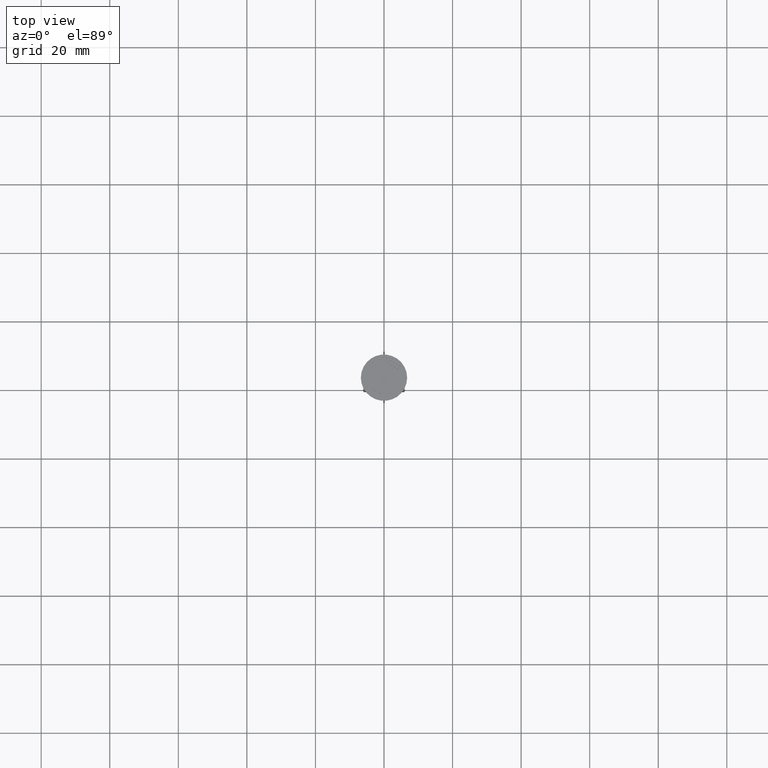
[diagram: clean part render]
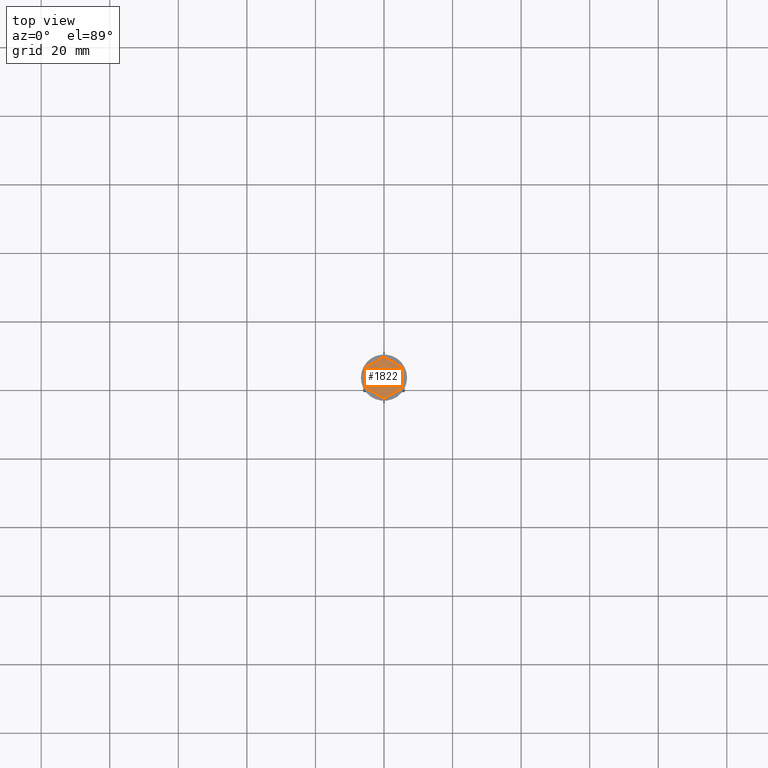
[diagram: same view with one face highlighted and labeled with its STEP entity id]
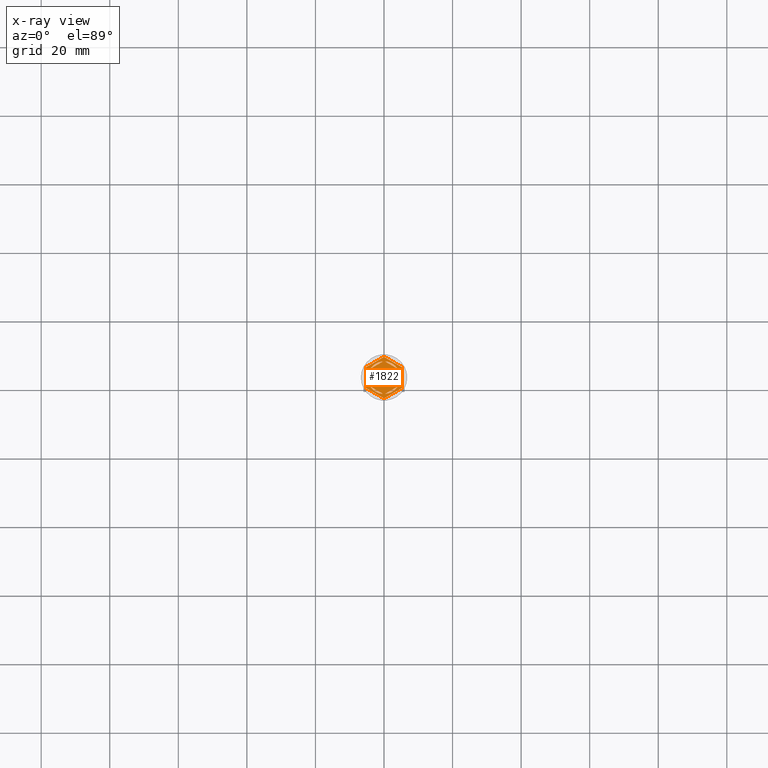
[diagram: x-ray of the same camera — body ghosted, the highlighted face saturated]
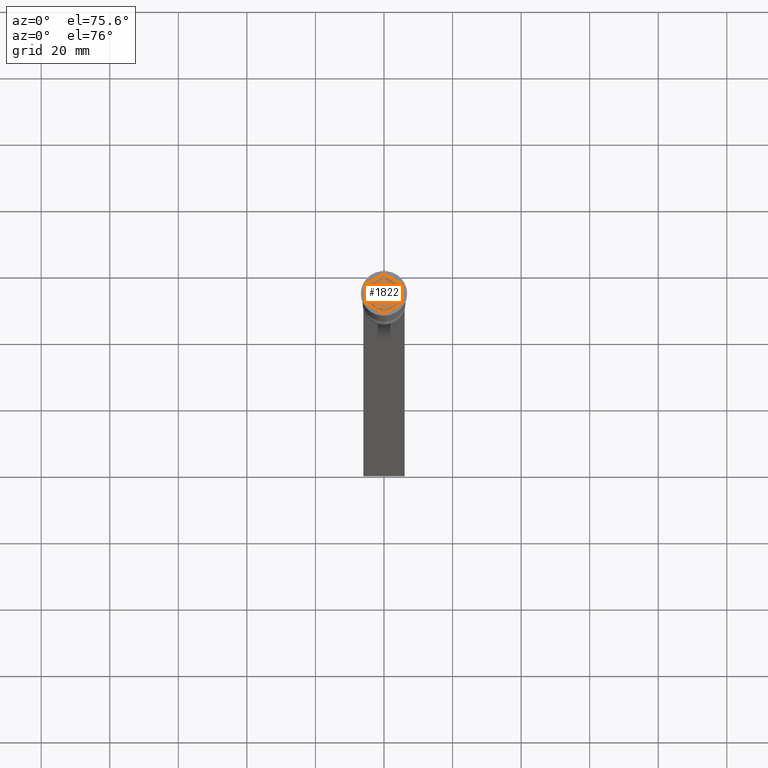
[diagram: same view with one face highlighted and labeled with its STEP entity id]
A machine part, top view. The second image highlights one B-rep face of the part: STEP entity #1822.
The next image is the same camera in x-ray: the body ghosted, the highlighted face saturated — about 0% of this face is hidden behind the body in this view.
A second angle (auxiliary view) of the same face is appended — the face is thin or edge-on in the first view.
In plain terms, the highlighted planar face has unit normal (0, 0, 1).
Its self-contained STEP definition (entity closure, byte-faithful):
#10 = ORIENTED_EDGE ( 'NONE', *, *, #2253, .F. ) ;
#44 = CARTESIAN_POINT ( 'NONE',  ( 0.2878826929126145906, 4.741268137863685617, -1.000000000000000888 ) ) ;
#48 = LINE ( 'NONE', #2234, #1644 ) ;
#51 = AXIS2_PLACEMENT_3D ( 'NONE', #2301, #1766, #1680 ) ;
#53 = VECTOR ( 'NONE', #285, 1000.000000000000000 ) ;
#59 = CARTESIAN_POINT ( 'NONE',  ( -4.250000000000000000, 2.453738644055909468, -1.000000000000000888 ) ) ;
#69 = EDGE_CURVE ( 'NONE', #2292, #2119, #1485, .T. ) ;
#103 = DIRECTION ( 'NONE',  ( 0.000000000000000000, 1.000000000000000000, 0.000000000000000000 ) ) ;
#106 = VERTEX_POINT ( 'NONE', #44 ) ;
#117 = DIRECTION ( 'NONE',  ( 0.000000000000000000, 0.000000000000000000, 1.000000000000000000 ) ) ;
#123 = EDGE_LOOP ( 'NONE', ( #1969, #1373 ) ) ;
#124 = VERTEX_POINT ( 'NONE', #1328 ) ;
#158 = VECTOR ( 'NONE', #103, 1000.000000000000000 ) ;
#163 = VERTEX_POINT ( 'NONE', #965 ) ;
#165 = ORIENTED_EDGE ( 'NONE', *, *, #69, .T. ) ;
#180 = CARTESIAN_POINT ( 'NONE',  ( 4.249999999999999112, -2.121320343559645938, -1.000000000000000888 ) ) ;
#183 = EDGE_CURVE ( 'NONE', #498, #2292, #1371, .T. ) ;
#184 = LINE ( 'NONE', #1286, #1875 ) ;
#222 = CIRCLE ( 'NONE', #1537, 4.750000000000000888 ) ;
#231 = VECTOR ( 'NONE', #2023, 1000.000000000000227 ) ;
#256 = DIRECTION ( 'NONE',  ( 1.000000000000000000, 0.000000000000000000, 0.000000000000000000 ) ) ;
#277 = CARTESIAN_POINT ( 'NONE',  ( -5.250000000000000888, 3.031088913245535643, -1.000000000000000000 ) ) ;
#285 = DIRECTION ( 'NONE',  ( -0.8660254037844387076, -0.4999999999999999445, 0.000000000000000000 ) ) ;
#293 = VERTEX_POINT ( 'NONE', #1902 ) ;
#301 = VECTOR ( 'NONE', #2045, 1000.000000000000114 ) ;
#307 = CARTESIAN_POINT ( 'NONE',  ( 5.250000000000000888, -3.031088913245536087, -1.000000000000000000 ) ) ;
#314 = ORIENTED_EDGE ( 'NONE', *, *, #1707, .F. ) ;
#334 = FACE_BOUND ( 'NONE', #2255, .T. ) ;
#345 = PLANE ( 'NONE',  #437 ) ;
#365 = VERTEX_POINT ( 'NONE', #2147 ) ;
#375 = VERTEX_POINT ( 'NONE', #1628 ) ;
#389 = VERTEX_POINT ( 'NONE', #935 ) ;
#408 = CARTESIAN_POINT ( 'NONE',  ( 0.000000000000000000, 6.062177826491072175, -1.000000000000000000 ) ) ;
#424 = DIRECTION ( 'NONE',  ( -1.767428939690775055E-16, -1.000000000000000000, 0.000000000000000000 ) ) ;
#431 = CARTESIAN_POINT ( 'NONE',  ( -4.250000000000000000, 2.121320343559643717, -1.000000000000000888 ) ) ;
#437 = AXIS2_PLACEMENT_3D ( 'NONE', #841, #1553, #494 ) ;
#451 = EDGE_CURVE ( 'NONE', #124, #163, #184, .T. ) ;
#467 = FACE_BOUND ( 'NONE', #1935, .T. ) ;
#471 = AXIS2_PLACEMENT_3D ( 'NONE', #1001, #1708, #2032 ) ;
#492 = DIRECTION ( 'NONE',  ( 1.000000000000000000, 0.000000000000000000, 0.000000000000000000 ) ) ;
#494 = DIRECTION ( 'NONE',  ( 1.000000000000000000, 0.000000000000000000, -0.000000000000000000 ) ) ;
#498 = VERTEX_POINT ( 'NONE', #769 ) ;
#511 = ORIENTED_EDGE ( 'NONE', *, *, #2085, .F. ) ;
#516 = EDGE_CURVE ( 'NONE', #1576, #498, #1318, .T. ) ;
#539 = EDGE_CURVE ( 'NONE', #2310, #773, #1621, .T. ) ;
#558 = AXIS2_PLACEMENT_3D ( 'NONE', #909, #920, #2178 ) ;
#589 = DIRECTION ( 'NONE',  ( 0.000000000000000000, 0.000000000000000000, 1.000000000000000000 ) ) ;
#592 = DIRECTION ( 'NONE',  ( 1.000000000000000000, 0.000000000000000000, 0.000000000000000000 ) ) ;
#600 = CARTESIAN_POINT ( 'NONE',  ( 0.000000000000000000, 0.000000000000000000, -1.000000000000000000 ) ) ;
#630 = CARTESIAN_POINT ( 'NONE',  ( 3.962117307087384521, 2.619947794304043232, -1.000000000000000888 ) ) ;
#632 = CARTESIAN_POINT ( 'NONE',  ( 0.000000000000000000, 6.062177826491072175, -1.000000000000000000 ) ) ;
#643 = VECTOR ( 'NONE', #1048, 1000.000000000000227 ) ;
#649 = DIRECTION ( 'NONE',  ( 0.8660254037844387076, -0.4999999999999998335, 0.000000000000000000 ) ) ;
#668 = ORIENTED_EDGE ( 'NONE', *, *, #451, .F. ) ;
#669 = VECTOR ( 'NONE', #424, 1000.000000000000000 ) ;
#688 = EDGE_CURVE ( 'NONE', #1718, #365, #883, .T. ) ;
#691 = ORIENTED_EDGE ( 'NONE', *, *, #1647, .F. ) ;
#705 = VECTOR ( 'NONE', #1273, 1000.000000000000000 ) ;
#709 = EDGE_CURVE ( 'NONE', #2119, #1547, #1899, .T. ) ;
#769 = CARTESIAN_POINT ( 'NONE',  ( 5.250000000000000888, -3.031088913245536087, -1.000000000000000000 ) ) ;
#773 = VERTEX_POINT ( 'NONE', #867 ) ;
#774 = LINE ( 'NONE', #1861, #669 ) ;
#777 = CARTESIAN_POINT ( 'NONE',  ( 0.000000000000000000, 0.000000000000000000, -1.000000000000000000 ) ) ;
#779 = ORIENTED_EDGE ( 'NONE', *, *, #183, .T. ) ;
#827 = VERTEX_POINT ( 'NONE', #180 ) ;
#828 = CARTESIAN_POINT ( 'NONE',  ( 0.000000000000000000, 0.000000000000000000, -1.000000000000000000 ) ) ;
#831 = VECTOR ( 'NONE', #649, 1000.000000000000000 ) ;
#841 = CARTESIAN_POINT ( 'NONE',  ( 0.000000000000000000, 0.000000000000000000, -1.000000000000000000 ) ) ;
#853 = FACE_BOUND ( 'NONE', #927, .T. ) ;
#867 = CARTESIAN_POINT ( 'NONE',  ( 3.962117307087384521, -2.619947794304042787, -1.000000000000000888 ) ) ;
#879 = EDGE_LOOP ( 'NONE', ( #165, #1427, #1200, #1152, #1047, #779 ) ) ;
#883 = CIRCLE ( 'NONE', #1777, 4.750000000000000888 ) ;
#898 = CARTESIAN_POINT ( 'NONE',  ( 4.250000000000000000, 2.453738644055910800, -1.000000000000000888 ) ) ;
#909 = CARTESIAN_POINT ( 'NONE',  ( 0.000000000000000000, 0.000000000000000000, -1.000000000000000000 ) ) ;
#910 = DIRECTION ( 'NONE',  ( 0.8660254037844385966, 0.5000000000000001110, -0.000000000000000000 ) ) ;
#920 = DIRECTION ( 'NONE',  ( 0.000000000000000000, 0.000000000000000000, 1.000000000000000000 ) ) ;
#927 = EDGE_LOOP ( 'NONE', ( #1408, #10 ) ) ;
#934 = EDGE_CURVE ( 'NONE', #293, #827, #774, .T. ) ;
#935 = CARTESIAN_POINT ( 'NONE',  ( -0.2878826929126160894, -4.741268137863686505, -1.000000000000000888 ) ) ;
#943 = CARTESIAN_POINT ( 'NONE',  ( -4.250000000000000000, -2.453738644055909912, -1.000000000000000888 ) ) ;
#948 = VERTEX_POINT ( 'NONE', #2205 ) ;
#965 = CARTESIAN_POINT ( 'NONE',  ( -0.2878826929126160894, 4.741268137863686505, -1.000000000000000888 ) ) ;
#969 = VECTOR ( 'NONE', #1609, 1000.000000000000000 ) ;
#1001 = CARTESIAN_POINT ( 'NONE',  ( 0.000000000000000000, 0.000000000000000000, -1.000000000000000000 ) ) ;
#1047 = ORIENTED_EDGE ( 'NONE', *, *, #516, .T. ) ;
#1048 = DIRECTION ( 'NONE',  ( -0.8660254037844385966, -0.5000000000000000000, 0.000000000000000000 ) ) ;
#1120 = CARTESIAN_POINT ( 'NONE',  ( -5.250000000000000888, -3.031088913245536087, -1.000000000000000000 ) ) ;
#1123 = ORIENTED_EDGE ( 'NONE', *, *, #2180, .F. ) ;
#1128 = CIRCLE ( 'NONE', #558, 4.750000000000000888 ) ;
#1139 = DIRECTION ( 'NONE',  ( 0.000000000000000000, -1.000000000000000000, 0.000000000000000000 ) ) ;
#1151 = EDGE_CURVE ( 'NONE', #1942, #1576, #1926, .T. ) ;
#1152 = ORIENTED_EDGE ( 'NONE', *, *, #1151, .T. ) ;
#1168 = ORIENTED_EDGE ( 'NONE', *, *, #1832, .F. ) ;
#1170 = LINE ( 'NONE', #59, #2093 ) ;
#1183 = CARTESIAN_POINT ( 'NONE',  ( 5.250000000000000888, 3.031088913245536087, -1.000000000000000000 ) ) ;
#1184 = VERTEX_POINT ( 'NONE', #630 ) ;
#1200 = ORIENTED_EDGE ( 'NONE', *, *, #2112, .T. ) ;
#1209 = FACE_BOUND ( 'NONE', #123, .T. ) ;
#1240 = CIRCLE ( 'NONE', #471, 4.750000000000000888 ) ;
#1273 = DIRECTION ( 'NONE',  ( -0.8660254037844385966, 0.5000000000000001110, 0.000000000000000000 ) ) ;
#1286 = CARTESIAN_POINT ( 'NONE',  ( 4.336808689942017736E-16, 4.907477288111819824, -1.000000000000000888 ) ) ;
#1318 = LINE ( 'NONE', #2028, #301 ) ;
#1328 = CARTESIAN_POINT ( 'NONE',  ( -3.962117307087385409, 2.619947794304041899, -1.000000000000000888 ) ) ;
#1350 = CARTESIAN_POINT ( 'NONE',  ( 5.250000000000000888, 3.031088913245536087, -1.000000000000000000 ) ) ;
#1366 = CARTESIAN_POINT ( 'NONE',  ( -5.250000000000000888, -3.031088913245536087, -1.000000000000000000 ) ) ;
#1371 = LINE ( 'NONE', #307, #158 ) ;
#1373 = ORIENTED_EDGE ( 'NONE', *, *, #934, .F. ) ;
#1408 = ORIENTED_EDGE ( 'NONE', *, *, #539, .F. ) ;
#1421 = FACE_OUTER_BOUND ( 'NONE', #879, .T. ) ;
#1427 = ORIENTED_EDGE ( 'NONE', *, *, #709, .T. ) ;
#1467 = EDGE_CURVE ( 'NONE', #827, #293, #222, .T. ) ;
#1485 = LINE ( 'NONE', #1350, #231 ) ;
#1499 = DIRECTION ( 'NONE',  ( 0.000000000000000000, 0.000000000000000000, 1.000000000000000000 ) ) ;
#1509 = DIRECTION ( 'NONE',  ( 0.000000000000000000, 1.000000000000000000, 0.000000000000000000 ) ) ;
#1537 = AXIS2_PLACEMENT_3D ( 'NONE', #2017, #589, #256 ) ;
#1547 = VERTEX_POINT ( 'NONE', #277 ) ;
#1553 = DIRECTION ( 'NONE',  ( 0.000000000000000000, 0.000000000000000000, 1.000000000000000000 ) ) ;
#1558 = ORIENTED_EDGE ( 'NONE', *, *, #2164, .F. ) ;
#1563 = EDGE_LOOP ( 'NONE', ( #314, #691 ) ) ;
#1576 = VERTEX_POINT ( 'NONE', #2275 ) ;
#1609 = DIRECTION ( 'NONE',  ( 0.8660254037844387076, -0.4999999999999998335, 0.000000000000000000 ) ) ;
#1614 = LINE ( 'NONE', #943, #705 ) ;
#1621 = CIRCLE ( 'NONE', #2005, 4.750000000000000888 ) ;
#1628 = CARTESIAN_POINT ( 'NONE',  ( -3.962117307087385409, -2.619947794304041899, -1.000000000000000888 ) ) ;
#1644 = VECTOR ( 'NONE', #1139, 1000.000000000000000 ) ;
#1647 = EDGE_CURVE ( 'NONE', #106, #1184, #1758, .T. ) ;
#1680 = DIRECTION ( 'NONE',  ( 1.000000000000000000, 0.000000000000000000, 0.000000000000000000 ) ) ;
#1682 = EDGE_LOOP ( 'NONE', ( #511, #668 ) ) ;
#1707 = EDGE_CURVE ( 'NONE', #1184, #106, #1240, .T. ) ;
#1708 = DIRECTION ( 'NONE',  ( 0.000000000000000000, 0.000000000000000000, 1.000000000000000000 ) ) ;
#1718 = VERTEX_POINT ( 'NONE', #431 ) ;
#1737 = CARTESIAN_POINT ( 'NONE',  ( 0.2878826929126150347, -4.741268137863686505, -1.000000000000000888 ) ) ;
#1758 = LINE ( 'NONE', #898, #969 ) ;
#1763 = LINE ( 'NONE', #2068, #53 ) ;
#1766 = DIRECTION ( 'NONE',  ( 0.000000000000000000, 0.000000000000000000, 1.000000000000000000 ) ) ;
#1777 = AXIS2_PLACEMENT_3D ( 'NONE', #828, #117, #492 ) ;
#1822 = ADVANCED_FACE ( 'NONE', ( #2095, #1209, #853, #467, #334, #1956, #1421 ), #345, .T. ) ;
#1832 = EDGE_CURVE ( 'NONE', #375, #389, #1859, .T. ) ;
#1859 = CIRCLE ( 'NONE', #51, 4.750000000000000888 ) ;
#1861 = CARTESIAN_POINT ( 'NONE',  ( 4.249999999999999112, -2.453738644055910356, -1.000000000000000888 ) ) ;
#1875 = VECTOR ( 'NONE', #910, 1000.000000000000000 ) ;
#1899 = LINE ( 'NONE', #632, #643 ) ;
#1902 = CARTESIAN_POINT ( 'NONE',  ( 4.249999999999999112, 2.121320343559644162, -1.000000000000000888 ) ) ;
#1926 = LINE ( 'NONE', #1366, #831 ) ;
#1935 = EDGE_LOOP ( 'NONE', ( #1168, #2276 ) ) ;
#1942 = VERTEX_POINT ( 'NONE', #1120 ) ;
#1956 = FACE_BOUND ( 'NONE', #1682, .T. ) ;
#1969 = ORIENTED_EDGE ( 'NONE', *, *, #1467, .F. ) ;
#2005 = AXIS2_PLACEMENT_3D ( 'NONE', #777, #1499, #2214 ) ;
#2016 = ORIENTED_EDGE ( 'NONE', *, *, #688, .F. ) ;
#2017 = CARTESIAN_POINT ( 'NONE',  ( 0.000000000000000000, 0.000000000000000000, -1.000000000000000000 ) ) ;
#2023 = DIRECTION ( 'NONE',  ( -0.8660254037844385966, 0.4999999999999998890, 0.000000000000000000 ) ) ;
#2028 = CARTESIAN_POINT ( 'NONE',  ( 8.729740977282959667E-16, -6.062177826491071286, -1.000000000000000000 ) ) ;
#2032 = DIRECTION ( 'NONE',  ( 1.000000000000000000, 0.000000000000000000, 0.000000000000000000 ) ) ;
#2045 = DIRECTION ( 'NONE',  ( 0.8660254037844385966, 0.4999999999999999445, 0.000000000000000000 ) ) ;
#2046 = EDGE_CURVE ( 'NONE', #389, #375, #1614, .T. ) ;
#2053 = CIRCLE ( 'NONE', #2330, 4.750000000000000888 ) ;
#2068 = CARTESIAN_POINT ( 'NONE',  ( -8.673617379884035472E-16, -4.907477288111819824, -1.000000000000000888 ) ) ;
#2085 = EDGE_CURVE ( 'NONE', #163, #124, #1128, .T. ) ;
#2093 = VECTOR ( 'NONE', #1509, 1000.000000000000000 ) ;
#2095 = FACE_BOUND ( 'NONE', #1563, .T. ) ;
#2112 = EDGE_CURVE ( 'NONE', #1547, #1942, #48, .T. ) ;
#2119 = VERTEX_POINT ( 'NONE', #408 ) ;
#2147 = CARTESIAN_POINT ( 'NONE',  ( -4.750000000000000888, 0.000000000000000000, -1.000000000000000000 ) ) ;
#2164 = EDGE_CURVE ( 'NONE', #365, #948, #2053, .T. ) ;
#2178 = DIRECTION ( 'NONE',  ( 1.000000000000000000, 0.000000000000000000, 0.000000000000000000 ) ) ;
#2180 = EDGE_CURVE ( 'NONE', #948, #1718, #1170, .T. ) ;
#2205 = CARTESIAN_POINT ( 'NONE',  ( -4.250000000000000000, -2.121320343559643717, -1.000000000000000888 ) ) ;
#2206 = DIRECTION ( 'NONE',  ( 0.000000000000000000, 0.000000000000000000, 1.000000000000000000 ) ) ;
#2214 = DIRECTION ( 'NONE',  ( 1.000000000000000000, 0.000000000000000000, 0.000000000000000000 ) ) ;
#2234 = CARTESIAN_POINT ( 'NONE',  ( -5.250000000000000888, 3.031088913245535643, -1.000000000000000000 ) ) ;
#2253 = EDGE_CURVE ( 'NONE', #773, #2310, #1763, .T. ) ;
#2255 = EDGE_LOOP ( 'NONE', ( #2016, #1123, #1558 ) ) ;
#2275 = CARTESIAN_POINT ( 'NONE',  ( 8.729740977282959667E-16, -6.062177826491071286, -1.000000000000000000 ) ) ;
#2276 = ORIENTED_EDGE ( 'NONE', *, *, #2046, .F. ) ;
#2292 = VERTEX_POINT ( 'NONE', #1183 ) ;
#2301 = CARTESIAN_POINT ( 'NONE',  ( 0.000000000000000000, 0.000000000000000000, -1.000000000000000000 ) ) ;
#2310 = VERTEX_POINT ( 'NONE', #1737 ) ;
#2330 = AXIS2_PLACEMENT_3D ( 'NONE', #600, #2206, #592 ) ;